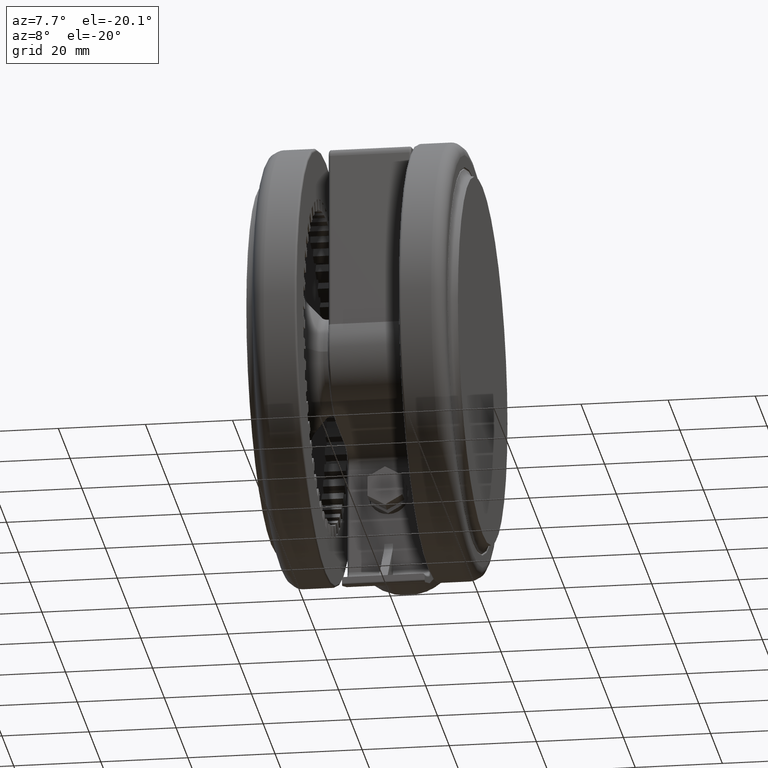
[diagram: clean part render]
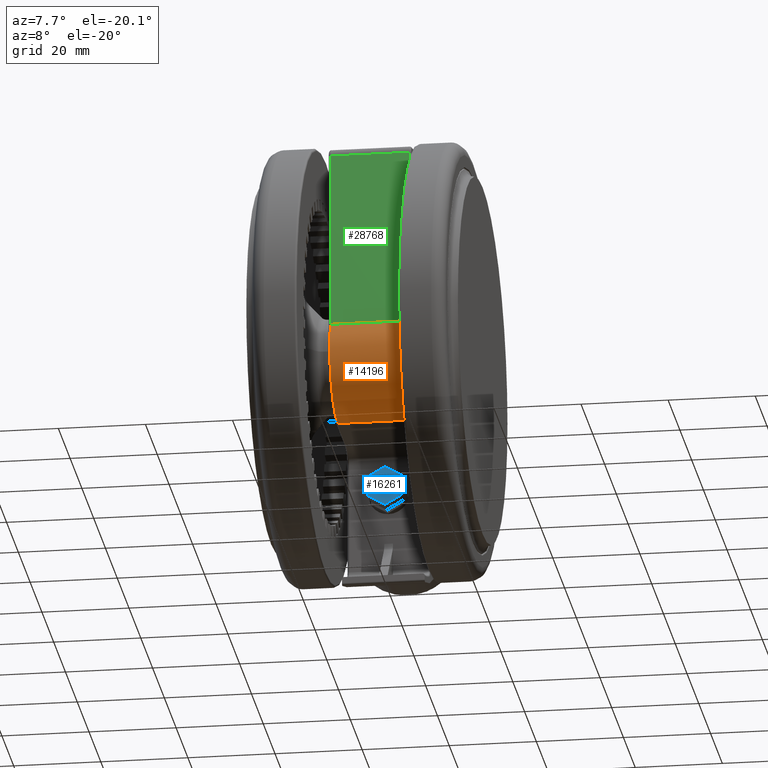
[diagram: same view with three faces highlighted in distinct colors, each labeled with its STEP entity id]
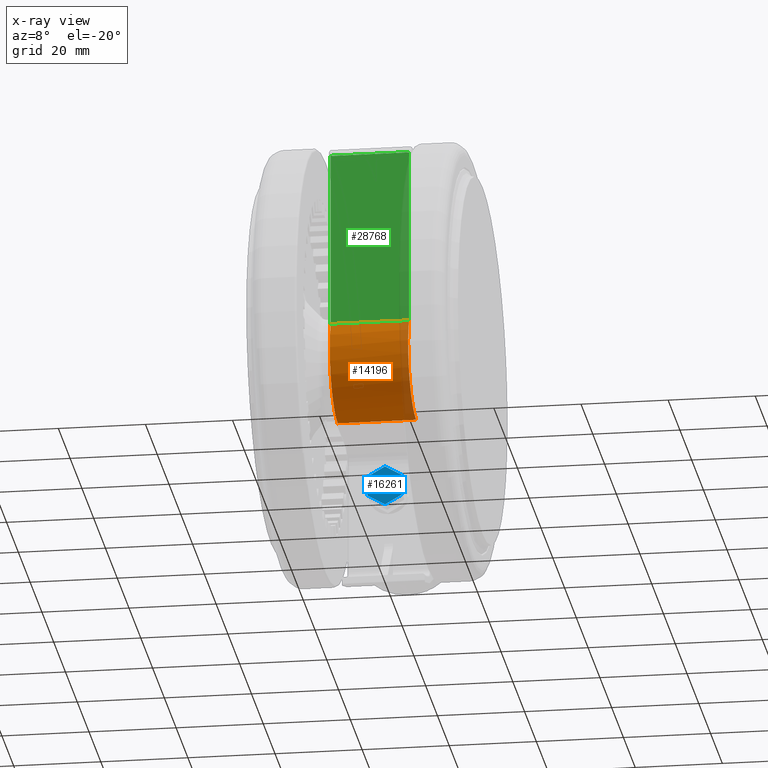
[diagram: x-ray of the same camera — body ghosted, the three highlighted faces saturated]
A machine part, auxiliary view with three faces highlighted in distinct colors.
The next image is the same camera in x-ray (body ghosted, the three faces saturated) — at least one of them is partly hidden behind the body in this view.
Their STEP definitions:

[orange] entity #14196 — the highlighted cylindrical surface (partial cylindrical patch) has radius 13.5 mm, axis along (-1, 0, 0).
#955 = VERTEX_POINT ( 'NONE', #10577 ) ;
#1866 = CARTESIAN_POINT ( 'NONE',  ( 13.49999999999999800, -1.151256699737152100, -15.30000000000001000 ) ) ;
#2081 = CARTESIAN_POINT ( 'NONE',  ( 4.983984600033090300, -12.59901938625870300, -15.30000000000001100 ) ) ;
#2170 = LINE ( 'NONE', #27341, #27970 ) ;
#2376 = DIRECTION ( 'NONE',  ( 1.133627716667516000E-033, 4.413456915335259200E-017, -1.000000000000000000 ) ) ;
#2396 = CARTESIAN_POINT ( 'NONE',  ( 8.009989265459605400, -10.92773828181803400, -33.30000000000000400 ) ) ;
#2451 = B_SPLINE_CURVE_WITH_KNOTS ( 'NONE', 3,
 ( #16919, #1866, #24461, #9498, #26973, #12009, #29505, #14506, #32021, #17023, #2081, #19544, #4575, #22060, #7078, #24576, #9604, #27072 ),
 .UNSPECIFIED., .F., .F.,
 ( 4, 2, 2, 2, 2, 2, 2, 2, 4 ),
 ( 0.0000000000000000000, 0.1250000000000000000, 0.2500000000000000000, 0.3750000000000000000, 0.5000000000000000000, 0.6250000000000000000, 0.7500000000000000000, 0.8750000000000000000, 1.000000000000000000 ),
 .UNSPECIFIED. ) ;
#2888 = DIRECTION ( 'NONE',  ( 1.133627716667516000E-033, 4.413456915335259200E-017, -1.000000000000000000 ) ) ;
#3751 = EDGE_CURVE ( 'NONE', #955, #4551, #2170, .T. ) ;
#4551 = VERTEX_POINT ( 'NONE', #23087 ) ;
#4575 = CARTESIAN_POINT ( 'NONE',  ( 1.633546245554107900, -13.45016426116520100, -15.30000000000001100 ) ) ;
#4887 = CARTESIAN_POINT ( 'NONE',  ( 10.51458173257265500, -8.545113397593915700, -33.30000000000000400 ) ) ;
#7078 = CARTESIAN_POINT ( 'NONE',  ( -1.823228198863717300, -13.42576742400812500, -15.30000000000001100 ) ) ;
#7084 = CARTESIAN_POINT ( 'NONE',  ( 13.50000000000000000, 1.337513677085614000E-015, -15.30000000000001000 ) ) ;
#7384 = VECTOR ( 'NONE', #2888, 1000.000000000000000 ) ;
#7387 = DIRECTION ( 'NONE',  ( -1.000000000000000000, 0.0000000000000000000, 0.0000000000000000000 ) ) ;
#7403 = CARTESIAN_POINT ( 'NONE',  ( 12.33472494590598400, -5.606242279596394900, -33.30000000000001100 ) ) ;
#9252 = EDGE_LOOP ( 'NONE', ( #15957, #18236, #32087, #23929 ) ) ;
#9498 = CARTESIAN_POINT ( 'NONE',  ( 12.76927797785787400, -4.530003522391950800, -15.30000000000000600 ) ) ;
#9604 = CARTESIAN_POINT ( 'NONE',  ( -5.161319160483881100, -12.52741699283262600, -15.30000000000001300 ) ) ;
#9642 = EDGE_CURVE ( 'NONE', #20113, #15160, #24027, .T. ) ;
#9816 = CARTESIAN_POINT ( 'NONE',  ( -4.070221318294502000, -12.92318422095694400, -33.30000000000001800 ) ) ;
#9923 = CARTESIAN_POINT ( 'NONE',  ( 13.35193624054495300, -2.302431457636035200, -33.30000000000001800 ) ) ;
#10448 = FACE_OUTER_BOUND ( 'NONE', #9252, .T. ) ;
#10577 = CARTESIAN_POINT ( 'NONE',  ( -6.184469325910300500, -11.99999999999999800, -15.30000000000001000 ) ) ;
#10845 = B_SPLINE_CURVE_WITH_KNOTS ( 'NONE', 3,
 ( #19738, #17231, #9816, #27272, #12318, #29817, #14829, #32314, #17342, #2396, #19863, #4887, #22378, #7403, #24883, #9923, #27379, #12432 ),
 .UNSPECIFIED., .F., .F.,
 ( 4, 2, 2, 2, 2, 2, 2, 2, 4 ),
 ( 0.0000000000000000000, 0.1250000000000000300, 0.2500000000000000000, 0.3749999999999999400, 0.4999999999999999400, 0.6249999999999998900, 0.7499999999999998900, 0.8750000000000000000, 1.000000000000000000 ),
 .UNSPECIFIED. ) ;
#12009 = CARTESIAN_POINT ( 'NONE',  ( 11.20733670177476600, -7.613868664597646300, -15.30000000000001300 ) ) ;
#12318 = CARTESIAN_POINT ( 'NONE',  ( -0.6674928535877474600, -13.53254762707669000, -33.30000000000001100 ) ) ;
#12385 = DIRECTION ( 'NONE',  ( 1.133627716667516000E-033, 4.413456915335259200E-017, -1.000000000000000000 ) ) ;
#12432 = CARTESIAN_POINT ( 'NONE',  ( 13.50000000000000000, 2.131935921845960600E-015, -33.30000000000001100 ) ) ;
#12945 = EDGE_CURVE ( 'NONE', #20113, #955, #2451, .T. ) ;
#14196 = ADVANCED_FACE ( 'NONE', ( #10448 ), #22964, .T. ) ;
#14506 = CARTESIAN_POINT ( 'NONE',  ( 8.915851118795977500, -10.20210717529247000, -15.30000000000001300 ) ) ;
#14757 = AXIS2_PLACEMENT_3D ( 'NONE', #17216, #2376, #7387 ) ;
#14829 = CARTESIAN_POINT ( 'NONE',  ( 2.778686220678311600, -13.26100655590298600, -33.30000000000000400 ) ) ;
#15160 = VERTEX_POINT ( 'NONE', #31412 ) ;
#15957 = ORIENTED_EDGE ( 'NONE', *, *, #3751, .T. ) ;
#16919 = CARTESIAN_POINT ( 'NONE',  ( 13.50000000000000000, 1.337513677085614000E-015, -15.30000000000001000 ) ) ;
#17023 = CARTESIAN_POINT ( 'NONE',  ( 6.043986039962738300, -12.12623703947045300, -15.30000000000001300 ) ) ;
#17216 = CARTESIAN_POINT ( 'NONE',  ( -1.076946330834140200E-032, 1.315445069019957500E-015, -14.80000000000001000 ) ) ;
#17231 = CARTESIAN_POINT ( 'NONE',  ( -5.161319160483881100, -12.52741699283262400, -33.30000000000001800 ) ) ;
#17342 = CARTESIAN_POINT ( 'NONE',  ( 6.043986039962737400, -12.12623703947045500, -33.30000000000001100 ) ) ;
#18236 = ORIENTED_EDGE ( 'NONE', *, *, #23468, .T. ) ;
#19544 = CARTESIAN_POINT ( 'NONE',  ( 2.778686220678312500, -13.26100655590298800, -15.30000000000001300 ) ) ;
#19738 = CARTESIAN_POINT ( 'NONE',  ( -6.184618759364100000, -11.99992299871103900, -33.30000000000001100 ) ) ;
#19863 = CARTESIAN_POINT ( 'NONE',  ( 8.915851118795973900, -10.20210717529246800, -33.30000000000000400 ) ) ;
#20113 = VERTEX_POINT ( 'NONE', #7084 ) ;
#22060 = CARTESIAN_POINT ( 'NONE',  ( -0.6674928535877470100, -13.53254762707668800, -15.30000000000001300 ) ) ;
#22378 = CARTESIAN_POINT ( 'NONE',  ( 11.20733670177476400, -7.613868664597643700, -33.30000000000000400 ) ) ;
#22964 = CYLINDRICAL_SURFACE ( 'NONE', #14757, 13.50000000000000000 ) ;
#23087 = CARTESIAN_POINT ( 'NONE',  ( -6.184618759364100000, -11.99992299871103900, -33.30000000000001100 ) ) ;
#23468 = EDGE_CURVE ( 'NONE', #4551, #15160, #10845, .T. ) ;
#23929 = ORIENTED_EDGE ( 'NONE', *, *, #12945, .T. ) ;
#24027 = LINE ( 'NONE', #25273, #7384 ) ;
#24461 = CARTESIAN_POINT ( 'NONE',  ( 13.35193624054495100, -2.302431457636036500, -15.30000000000001300 ) ) ;
#24576 = CARTESIAN_POINT ( 'NONE',  ( -4.070221318294502000, -12.92318422095694600, -15.30000000000001000 ) ) ;
#24883 = CARTESIAN_POINT ( 'NONE',  ( 12.76927797785787400, -4.530003522391953500, -33.30000000000001100 ) ) ;
#25273 = CARTESIAN_POINT ( 'NONE',  ( 13.50000000000000000, 1.315446392508937800E-015, -14.80000000000001000 ) ) ;
#26973 = CARTESIAN_POINT ( 'NONE',  ( 12.33472494590598400, -5.606242279596396600, -15.30000000000001100 ) ) ;
#27072 = CARTESIAN_POINT ( 'NONE',  ( -6.184469325910300500, -11.99999999999999800, -15.30000000000001000 ) ) ;
#27272 = CARTESIAN_POINT ( 'NONE',  ( -1.823228198863717600, -13.42576742400812300, -33.30000000000001100 ) ) ;
#27341 = CARTESIAN_POINT ( 'NONE',  ( -6.184658438426490400, -11.99999999999999800, -14.80000000000001000 ) ) ;
#27379 = CARTESIAN_POINT ( 'NONE',  ( 13.50000000000000000, -1.151256699737150900, -33.30000000000001100 ) ) ;
#27970 = VECTOR ( 'NONE', #12385, 1000.000000000000000 ) ;
#29505 = CARTESIAN_POINT ( 'NONE',  ( 10.51458173257265300, -8.545113397593914000, -15.30000000000001100 ) ) ;
#29817 = CARTESIAN_POINT ( 'NONE',  ( 1.633546245554107000, -13.45016426116520100, -33.30000000000000400 ) ) ;
#31412 = CARTESIAN_POINT ( 'NONE',  ( 13.50000000000000000, 2.131935921845960600E-015, -33.30000000000001100 ) ) ;
#32021 = CARTESIAN_POINT ( 'NONE',  ( 8.009989265459603700, -10.92773828181803900, -15.30000000000001100 ) ) ;
#32087 = ORIENTED_EDGE ( 'NONE', *, *, #9642, .F. ) ;
#32314 = CARTESIAN_POINT ( 'NONE',  ( 4.983984600033089400, -12.59901938625870000, -33.30000000000000400 ) ) ;

[blue] entity #16261 — the highlighted planar face has unit normal (0, -1, -0).
#75 = CARTESIAN_POINT ( 'NONE',  ( 26.30940107675850500, 13.70000000000003100, -20.30000000000001100 ) ) ;
#157 = PLANE ( 'NONE',  #26553 ) ;
#902 = DIRECTION ( 'NONE',  ( 0.5000000000000001100, 1.984484534720990000E-017, 0.8660254037844387100 ) ) ;
#1050 = CARTESIAN_POINT ( 'NONE',  ( 21.69059892324149200, 13.70000000000003100, -28.30000000000001100 ) ) ;
#1395 = CARTESIAN_POINT ( 'NONE',  ( 21.69059892324149200, 13.70000000000003100, -20.30000000000001100 ) ) ;
#1793 = EDGE_LOOP ( 'NONE', ( #5421, #20960, #2703, #10810, #7908, #27452 ) ) ;
#2161 = DIRECTION ( 'NONE',  ( 1.000000000000000000, 1.161330068381886000E-016, -1.224646799147352000E-016 ) ) ;
#2572 = DIRECTION ( 'NONE',  ( -1.000000000000000000, -1.161330068381886000E-016, 1.224646799147352000E-016 ) ) ;
#2703 = ORIENTED_EDGE ( 'NONE', *, *, #28434, .T. ) ;
#2867 = LINE ( 'NONE', #32041, #21998 ) ;
#3255 = EDGE_CURVE ( 'NONE', #4183, #17362, #17860, .T. ) ;
#3531 = CARTESIAN_POINT ( 'NONE',  ( 28.61880215351700600, 13.70000000000003100, -24.30000000000001100 ) ) ;
#4183 = VERTEX_POINT ( 'NONE', #32382 ) ;
#5143 = DIRECTION ( 'NONE',  ( 1.161330068381886000E-016, -1.000000000000000000, -4.413456915335257900E-017 ) ) ;
#5307 = LINE ( 'NONE', #29592, #31151 ) ;
#5355 = EDGE_CURVE ( 'NONE', #17362, #15685, #5307, .T. ) ;
#5421 = ORIENTED_EDGE ( 'NONE', *, *, #3255, .T. ) ;
#5880 = CARTESIAN_POINT ( 'NONE',  ( 26.30940107675850100, 13.70000000000003100, -28.30000000000001100 ) ) ;
#6834 = EDGE_CURVE ( 'NONE', #7872, #25625, #31059, .T. ) ;
#7438 = EDGE_CURVE ( 'NONE', #25625, #4183, #2867, .T. ) ;
#7872 = VERTEX_POINT ( 'NONE', #26572 ) ;
#7908 = ORIENTED_EDGE ( 'NONE', *, *, #6834, .T. ) ;
#10810 = ORIENTED_EDGE ( 'NONE', *, *, #17365, .T. ) ;
#11207 = VECTOR ( 'NONE', #20191, 1000.000000000000100 ) ;
#12040 = DIRECTION ( 'NONE',  ( -0.5000000000000001100, -1.984484534720990000E-017, -0.8660254037844387100 ) ) ;
#14515 = VECTOR ( 'NONE', #902, 999.9999999999998900 ) ;
#15685 = VERTEX_POINT ( 'NONE', #32393 ) ;
#16261 = ADVANCED_FACE ( 'NONE', ( #22036 ), #157, .T. ) ;
#17362 = VERTEX_POINT ( 'NONE', #1050 ) ;
#17365 = EDGE_CURVE ( 'NONE', #30724, #7872, #26286, .T. ) ;
#17860 = LINE ( 'NONE', #27601, #11207 ) ;
#20007 = CARTESIAN_POINT ( 'NONE',  ( 23.99999999999999600, 13.70000000000003100, -24.30000000000001100 ) ) ;
#20191 = DIRECTION ( 'NONE',  ( 0.4999999999999997200, 9.628816149097865900E-017, -0.8660254037844387100 ) ) ;
#20960 = ORIENTED_EDGE ( 'NONE', *, *, #5355, .T. ) ;
#21998 = VECTOR ( 'NONE', #12040, 999.9999999999998900 ) ;
#22036 = FACE_OUTER_BOUND ( 'NONE', #1793, .T. ) ;
#22640 = DIRECTION ( 'NONE',  ( 1.224646799147352000E-016, -4.413456915335256700E-017, 1.000000000000000000 ) ) ;
#23007 = CARTESIAN_POINT ( 'NONE',  ( 28.61880215351700600, 13.70000000000003100, -24.30000000000001100 ) ) ;
#23517 = DIRECTION ( 'NONE',  ( -0.4999999999999997200, -9.628816149097865900E-017, 0.8660254037844387100 ) ) ;
#25170 = VECTOR ( 'NONE', #2572, 1000.000000000000000 ) ;
#25504 = VECTOR ( 'NONE', #23517, 1000.000000000000100 ) ;
#25625 = VERTEX_POINT ( 'NONE', #1395 ) ;
#26286 = LINE ( 'NONE', #3531, #25504 ) ;
#26553 = AXIS2_PLACEMENT_3D ( 'NONE', #20007, #5143, #22640 ) ;
#26572 = CARTESIAN_POINT ( 'NONE',  ( 26.30940107675850500, 13.70000000000003100, -20.30000000000001100 ) ) ;
#27452 = ORIENTED_EDGE ( 'NONE', *, *, #7438, .T. ) ;
#27601 = CARTESIAN_POINT ( 'NONE',  ( 19.38119784648298700, 13.70000000000003100, -24.30000000000000800 ) ) ;
#27821 = LINE ( 'NONE', #5880, #14515 ) ;
#28434 = EDGE_CURVE ( 'NONE', #15685, #30724, #27821, .T. ) ;
#29592 = CARTESIAN_POINT ( 'NONE',  ( 21.69059892324149200, 13.70000000000003100, -28.30000000000001100 ) ) ;
#30724 = VERTEX_POINT ( 'NONE', #23007 ) ;
#31059 = LINE ( 'NONE', #75, #25170 ) ;
#31151 = VECTOR ( 'NONE', #2161, 1000.000000000000000 ) ;
#32041 = CARTESIAN_POINT ( 'NONE',  ( 21.69059892324149200, 13.70000000000003100, -20.30000000000001100 ) ) ;
#32382 = CARTESIAN_POINT ( 'NONE',  ( 19.38119784648298700, 13.70000000000003100, -24.30000000000000800 ) ) ;
#32393 = CARTESIAN_POINT ( 'NONE',  ( 26.30940107675850100, 13.70000000000003100, -28.30000000000001100 ) ) ;

[green] entity #28768 — the highlighted planar face has unit normal (0, 1, -0).
#917 = VERTEX_POINT ( 'NONE', #7853 ) ;
#955 = VERTEX_POINT ( 'NONE', #10577 ) ;
#2170 = LINE ( 'NONE', #27341, #27970 ) ;
#3287 = EDGE_LOOP ( 'NONE', ( #16191, #3839, #13911, #21379 ) ) ;
#3751 = EDGE_CURVE ( 'NONE', #955, #4551, #2170, .T. ) ;
#3839 = ORIENTED_EDGE ( 'NONE', *, *, #5815, .T. ) ;
#4551 = VERTEX_POINT ( 'NONE', #23087 ) ;
#5089 = EDGE_CURVE ( 'NONE', #955, #5913, #6006, .T. ) ;
#5452 = CARTESIAN_POINT ( 'NONE',  ( -46.94677837722199600, -11.99999999999999800, -15.30000000000001000 ) ) ;
#5815 = EDGE_CURVE ( 'NONE', #917, #4551, #26789, .T. ) ;
#5913 = VERTEX_POINT ( 'NONE', #24305 ) ;
#6006 = LINE ( 'NONE', #5452, #6767 ) ;
#6345 = CARTESIAN_POINT ( 'NONE',  ( -46.94677837722199600, -11.99999999999999800, -14.80000000000001000 ) ) ;
#6460 = AXIS2_PLACEMENT_3D ( 'NONE', #9790, #29794, #14803 ) ;
#6767 = VECTOR ( 'NONE', #20432, 1000.000000000000000 ) ;
#6839 = VECTOR ( 'NONE', #28925, 1000.000000000000000 ) ;
#7853 = CARTESIAN_POINT ( 'NONE',  ( -46.94677837722199600, -11.99999999999999800, -33.30000000000001100 ) ) ;
#9790 = CARTESIAN_POINT ( 'NONE',  ( -4.914928604728780400E-016, -11.99999999999999800, -14.80000000000001000 ) ) ;
#10577 = CARTESIAN_POINT ( 'NONE',  ( -6.184469325910300500, -11.99999999999999800, -15.30000000000001000 ) ) ;
#12385 = DIRECTION ( 'NONE',  ( 1.133627716667516000E-033, 4.413456915335259200E-017, -1.000000000000000000 ) ) ;
#13530 = EDGE_CURVE ( 'NONE', #5913, #917, #30048, .T. ) ;
#13911 = ORIENTED_EDGE ( 'NONE', *, *, #3751, .F. ) ;
#14685 = PLANE ( 'NONE',  #6460 ) ;
#14803 = DIRECTION ( 'NONE',  ( -1.000000000000000000, 4.095773837273979300E-017, 6.740244199090913200E-034 ) ) ;
#16191 = ORIENTED_EDGE ( 'NONE', *, *, #13530, .T. ) ;
#17533 = VECTOR ( 'NONE', #23832, 1000.000000000000000 ) ;
#20432 = DIRECTION ( 'NONE',  ( -1.000000000000000000, 4.095773837273979300E-017, 6.740244199090913200E-034 ) ) ;
#21379 = ORIENTED_EDGE ( 'NONE', *, *, #5089, .T. ) ;
#23087 = CARTESIAN_POINT ( 'NONE',  ( -6.184618759364100000, -11.99992299871103900, -33.30000000000001100 ) ) ;
#23832 = DIRECTION ( 'NONE',  ( 1.133627716667516000E-033, 4.413456915335259200E-017, -1.000000000000000000 ) ) ;
#24274 = FACE_OUTER_BOUND ( 'NONE', #3287, .T. ) ;
#24305 = CARTESIAN_POINT ( 'NONE',  ( -46.94677837722199600, -11.99999999999999800, -15.30000000000001000 ) ) ;
#26789 = LINE ( 'NONE', #31433, #6839 ) ;
#27341 = CARTESIAN_POINT ( 'NONE',  ( -6.184658438426490400, -11.99999999999999800, -14.80000000000001000 ) ) ;
#27970 = VECTOR ( 'NONE', #12385, 1000.000000000000000 ) ;
#28768 = ADVANCED_FACE ( 'NONE', ( #24274 ), #14685, .F. ) ;
#28925 = DIRECTION ( 'NONE',  ( 1.000000000000000000, -4.095773837273979300E-017, -6.740244199090913200E-034 ) ) ;
#29794 = DIRECTION ( 'NONE',  ( 4.095773837273979300E-017, 1.000000000000000000, 4.413456915335259200E-017 ) ) ;
#30048 = LINE ( 'NONE', #6345, #17533 ) ;
#31433 = CARTESIAN_POINT ( 'NONE',  ( -4.914928604728780400E-016, -11.99999999999999800, -33.30000000000001100 ) ) ;